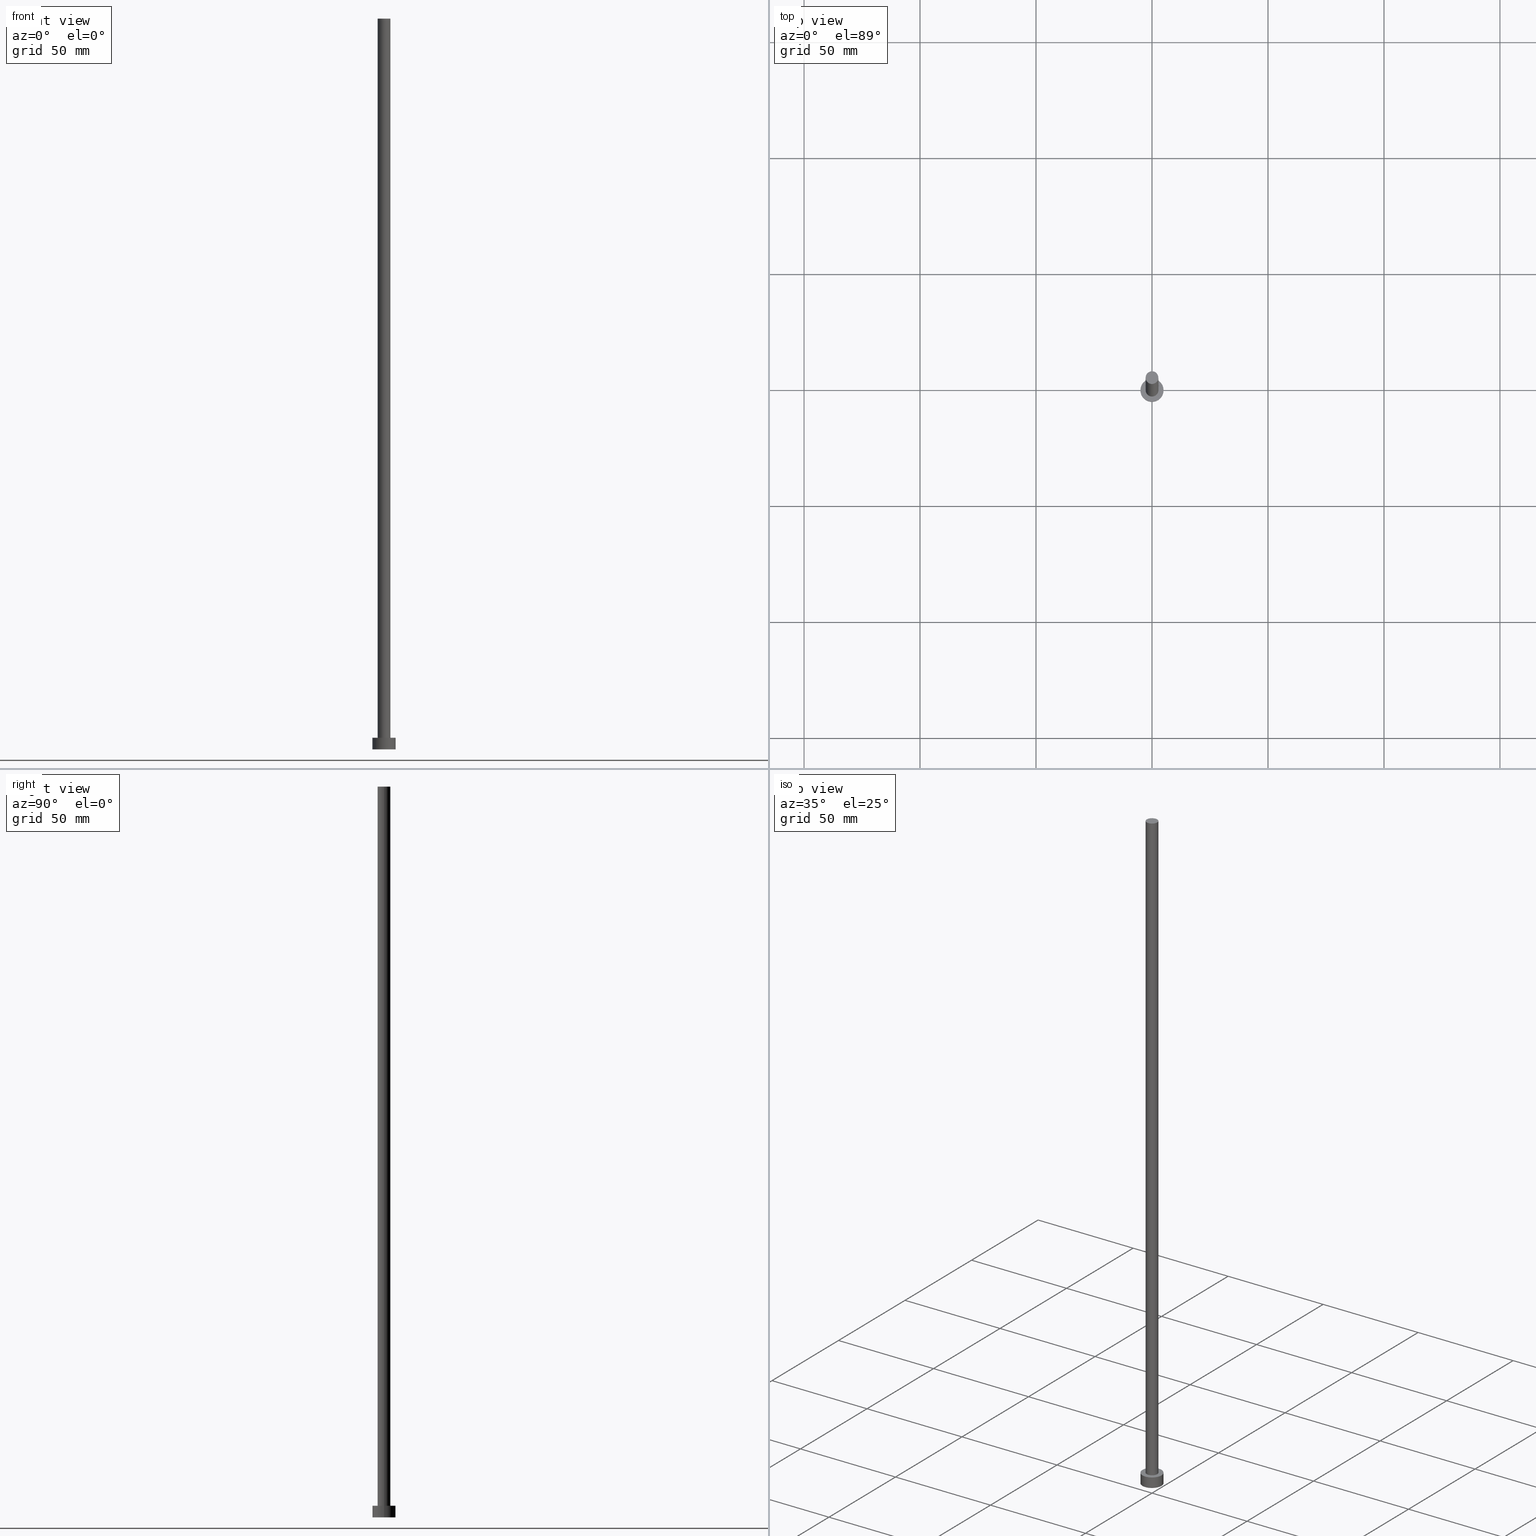
[diagram: canonical four-view strip — front | top / right | iso, engineering-drawing reading convention]
A machine part, canonical four-view strip (front | top / right | iso — engineering-drawing reading convention). The complete STEP part file that produces these views, byte-faithful:
ISO-10303-21;
HEADER;
FILE_DESCRIPTION (( 'STEP AP203' ),
    '1' );
FILE_NAME ('444e.STEP',
    '2023-02-13T15:47:10',
    ( '' ),
    ( '' ),
    'SwSTEP 2.0',
    'SolidWorks 2019',
    '' );
FILE_SCHEMA (( 'CONFIG_CONTROL_DESIGN' ));
ENDSEC;

DATA;
#1 = CIRCLE ( 'NONE', #114, 2.750000000000000000 ) ;
#2 =( NAMED_UNIT ( * ) SI_UNIT ( $, .STERADIAN. ) SOLID_ANGLE_UNIT ( ) );
#3 = ORIENTED_EDGE ( 'NONE', *, *, #108, .T. ) ;
#4 = CC_DESIGN_PERSON_AND_ORGANIZATION_ASSIGNMENT ( #29, #211, ( #58 ) ) ;
#5 = CYLINDRICAL_SURFACE ( 'NONE', #109, 5.000000000000000000 ) ;
#6 = AXIS2_PLACEMENT_3D ( 'NONE', #31, #113, #89 ) ;
#7 = DATE_TIME_ROLE ( 'classification_date' ) ;
#8 = DIRECTION ( 'NONE',  ( 0.000000000000000000, 0.000000000000000000, 1.000000000000000000 ) ) ;
#9 = DIRECTION ( 'NONE',  ( 0.000000000000000000, 0.000000000000000000, 1.000000000000000000 ) ) ;
#10 = ADVANCED_FACE ( 'NONE', ( #127 ), #80, .T. ) ;
#11 = ORIENTED_EDGE ( 'NONE', *, *, #67, .F. ) ;
#12 = VECTOR ( 'NONE', #150, 1000.000000000000000 ) ;
#13 = CC_DESIGN_PERSON_AND_ORGANIZATION_ASSIGNMENT ( #106, #190, ( #58 ) ) ;
#14 = FACE_OUTER_BOUND ( 'NONE', #134, .T. ) ;
#15 =( GEOMETRIC_REPRESENTATION_CONTEXT ( 3 ) GLOBAL_UNCERTAINTY_ASSIGNED_CONTEXT ( ( #34 ) ) GLOBAL_UNIT_ASSIGNED_CONTEXT ( ( #216, #176, #2 ) ) REPRESENTATION_CONTEXT ( 'NONE', 'WORKASPACE' ) );
#16 = EDGE_LOOP ( 'NONE', ( #131, #112, #3, #84 ) ) ;
#17 = CARTESIAN_POINT ( 'NONE',  ( 0.000000000000000000, 0.000000000000000000, 0.000000000000000000 ) ) ;
#18 = EDGE_CURVE ( 'NONE', #147, #169, #49, .T. ) ;
#19 = APPLICATION_PROTOCOL_DEFINITION ( 'international standard', 'config_control_design', 1994, #198 ) ;
#20 = DIRECTION ( 'NONE',  ( 1.000000000000000000, 0.000000000000000000, 0.000000000000000000 ) ) ;
#21 = SHAPE_DEFINITION_REPRESENTATION ( #165, #76 ) ;
#22 = FACE_OUTER_BOUND ( 'NONE', #54, .T. ) ;
#23 = PLANE ( 'NONE',  #251 ) ;
#24 = LOCAL_TIME ( 16, 47, 10.00000000000000000, #164 ) ;
#25 = DIRECTION ( 'NONE',  ( -0.000000000000000000, -0.000000000000000000, -1.000000000000000000 ) ) ;
#26 = CARTESIAN_POINT ( 'NONE',  ( 0.000000000000000000, 0.000000000000000000, 5.000000000000000000 ) ) ;
#27 = VECTOR ( 'NONE', #129, 1000.000000000000000 ) ;
#28 = ORIENTED_EDGE ( 'NONE', *, *, #231, .T. ) ;
#29 = PERSON_AND_ORGANIZATION ( #177, #148 ) ;
#30 = EDGE_LOOP ( 'NONE', ( #240, #253, #238, #119 ) ) ;
#31 = CARTESIAN_POINT ( 'NONE',  ( 0.000000000000000000, 0.000000000000000000, 5.000000000000000000 ) ) ;
#32 = EDGE_CURVE ( 'NONE', #57, #235, #246, .T. ) ;
#33 = DATE_TIME_ROLE ( 'creation_date' ) ;
#34 = UNCERTAINTY_MEASURE_WITH_UNIT (LENGTH_MEASURE( 1.000000000000000082E-05 ), #216, 'distance_accuracy_value', 'NONE');
#35 = DIRECTION ( 'NONE',  ( 0.000000000000000000, 0.000000000000000000, 1.000000000000000000 ) ) ;
#36 = CALENDAR_DATE ( 2023, 13, 2 ) ;
#37 = EDGE_CURVE ( 'NONE', #235, #201, #55, .T. ) ;
#38 = CARTESIAN_POINT ( 'NONE',  ( 0.000000000000000000, 0.000000000000000000, 5.000000000000000000 ) ) ;
#39 = CARTESIAN_POINT ( 'NONE',  ( 0.000000000000000000, 0.000000000000000000, 0.000000000000000000 ) ) ;
#40 = CC_DESIGN_APPROVAL ( #247, ( #52 ) ) ;
#41 = DIRECTION ( 'NONE',  ( -1.000000000000000000, 0.000000000000000000, 0.000000000000000000 ) ) ;
#42 = DIRECTION ( 'NONE',  ( 0.000000000000000000, 0.000000000000000000, 1.000000000000000000 ) ) ;
#43 = ORIENTED_EDGE ( 'NONE', *, *, #108, .F. ) ;
#44 = DIRECTION ( 'NONE',  ( 0.000000000000000000, 0.000000000000000000, 1.000000000000000000 ) ) ;
#45 = DATE_AND_TIME ( #172, #196 ) ;
#46 = CC_DESIGN_DATE_AND_TIME_ASSIGNMENT ( #161, #33, ( #52 ) ) ;
#47 = LOCAL_TIME ( 16, 47, 10.00000000000000000, #245 ) ;
#48 = LINE ( 'NONE', #215, #27 ) ;
#49 = CIRCLE ( 'NONE', #146, 5.000000000000000000 ) ;
#50 = AXIS2_PLACEMENT_3D ( 'NONE', #64, #208, #192 ) ;
#51 = APPROVAL_ROLE ( '' ) ;
#52 = PRODUCT_DEFINITION ( 'NEZN�M�', '', #58, #219 ) ;
#53 = ORIENTED_EDGE ( 'NONE', *, *, #151, .T. ) ;
#54 = EDGE_LOOP ( 'NONE', ( #53, #63 ) ) ;
#55 = CIRCLE ( 'NONE', #88, 2.750000000000000000 ) ;
#56 = EDGE_CURVE ( 'NONE', #170, #147, #159, .T. ) ;
#57 = VERTEX_POINT ( 'NONE', #60 ) ;
#58 = PRODUCT_DEFINITION_FORMATION_WITH_SPECIFIED_SOURCE ( 'LIBOVOLN�', '', #124, .NOT_KNOWN. ) ;
#59 = CARTESIAN_POINT ( 'NONE',  ( 0.000000000000000000, 0.000000000000000000, 315.0000000000000000 ) ) ;
#60 = CARTESIAN_POINT ( 'NONE',  ( -2.750000000000000000, 0.000000000000000000, 315.0000000000000000 ) ) ;
#61 = AXIS2_PLACEMENT_3D ( 'NONE', #26, #86, #236 ) ;
#62 = DIRECTION ( 'NONE',  ( -1.000000000000000000, 0.000000000000000000, 0.000000000000000000 ) ) ;
#63 = ORIENTED_EDGE ( 'NONE', *, *, #104, .T. ) ;
#64 = CARTESIAN_POINT ( 'NONE',  ( 0.000000000000000000, 0.000000000000000000, 0.000000000000000000 ) ) ;
#65 = DATE_AND_TIME ( #250, #24 ) ;
#66 = CARTESIAN_POINT ( 'NONE',  ( -5.000000000000000000, 0.000000000000000000, 0.000000000000000000 ) ) ;
#67 = EDGE_CURVE ( 'NONE', #169, #147, #68, .T. ) ;
#68 = CIRCLE ( 'NONE', #101, 5.000000000000000000 ) ;
#69 = LINE ( 'NONE', #128, #12 ) ;
#70 = ORIENTED_EDGE ( 'NONE', *, *, #203, .F. ) ;
#71 = CC_DESIGN_APPROVAL ( #194, ( #183 ) ) ;
#72 = EDGE_LOOP ( 'NONE', ( #70, #149, #87, #202 ) ) ;
#73 = APPROVAL_PERSON_ORGANIZATION ( #135, #194, #136 ) ;
#74 = ADVANCED_FACE ( 'NONE', ( #22 ), #23, .T. ) ;
#75 = CYLINDRICAL_SURFACE ( 'NONE', #221, 5.000000000000000000 ) ;
#76 = ADVANCED_BREP_SHAPE_REPRESENTATION ( '444e', ( #105, #144 ), #15 ) ;
#77 = DIRECTION ( 'NONE',  ( 0.000000000000000000, 0.000000000000000000, 1.000000000000000000 ) ) ;
#78 = AXIS2_PLACEMENT_3D ( 'NONE', #171, #44, #213 ) ;
#79 = APPROVAL_DATE_TIME ( #249, #247 ) ;
#80 = CYLINDRICAL_SURFACE ( 'NONE', #158, 2.750000000000000000 ) ;
#81 = CARTESIAN_POINT ( 'NONE',  ( -2.750000000000000000, 0.000000000000000000, 315.0000000000000000 ) ) ;
#82 = CC_DESIGN_PERSON_AND_ORGANIZATION_ASSIGNMENT ( #179, #115, ( #124 ) ) ;
#83 = LOCAL_TIME ( 16, 47, 10.00000000000000000, #139 ) ;
#84 = ORIENTED_EDGE ( 'NONE', *, *, #32, .F. ) ;
#85 = ADVANCED_FACE ( 'NONE', ( #224 ), #75, .T. ) ;
#86 = DIRECTION ( 'NONE',  ( 0.000000000000000000, 0.000000000000000000, 1.000000000000000000 ) ) ;
#87 = ORIENTED_EDGE ( 'NONE', *, *, #32, .T. ) ;
#88 = AXIS2_PLACEMENT_3D ( 'NONE', #220, #8, #162 ) ;
#89 = DIRECTION ( 'NONE',  ( 1.000000000000000000, 0.000000000000000000, 0.000000000000000000 ) ) ;
#90 = APPLICATION_PROTOCOL_DEFINITION ( 'international standard', 'config_control_design', 1994, #178 ) ;
#91 = CC_DESIGN_SECURITY_CLASSIFICATION ( #183, ( #58 ) ) ;
#92 = APPROVAL_STATUS ( 'not_yet_approved' ) ;
#93 = PRODUCT_RELATED_PRODUCT_CATEGORY ( 'detail', '', ( #124 ) ) ;
#94 = PLANE ( 'NONE',  #228 ) ;
#95 = CALENDAR_DATE ( 2023, 13, 2 ) ;
#96 = DIRECTION ( 'NONE',  ( 1.000000000000000000, 0.000000000000000000, 0.000000000000000000 ) ) ;
#97 = ADVANCED_FACE ( 'NONE', ( #122 ), #5, .T. ) ;
#98 = DIRECTION ( 'NONE',  ( 1.000000000000000000, 0.000000000000000000, 0.000000000000000000 ) ) ;
#99 = AXIS2_PLACEMENT_3D ( 'NONE', #222, #25, #100 ) ;
#100 = DIRECTION ( 'NONE',  ( -1.000000000000000000, 0.000000000000000000, 0.000000000000000000 ) ) ;
#101 = AXIS2_PLACEMENT_3D ( 'NONE', #248, #206, #204 ) ;
#102 = CARTESIAN_POINT ( 'NONE',  ( 0.000000000000000000, 0.000000000000000000, 315.0000000000000000 ) ) ;
#103 = SECURITY_CLASSIFICATION_LEVEL ( 'unclassified' ) ;
#104 = EDGE_CURVE ( 'NONE', #167, #57, #1, .T. ) ;
#105 = MANIFOLD_SOLID_BREP ( 'P�idat vysunut�m3', #197 ) ;
#106 = PERSON_AND_ORGANIZATION ( #177, #148 ) ;
#107 = CIRCLE ( 'NONE', #61, 5.000000000000000000 ) ;
#108 = EDGE_CURVE ( 'NONE', #201, #235, #175, .T. ) ;
#109 = AXIS2_PLACEMENT_3D ( 'NONE', #38, #205, #62 ) ;
#110 = CARTESIAN_POINT ( 'NONE',  ( 2.750000000000000000, 3.367778697655221012E-16, 315.0000000000000000 ) ) ;
#111 = CIRCLE ( 'NONE', #6, 5.000000000000000000 ) ;
#112 = ORIENTED_EDGE ( 'NONE', *, *, #203, .T. ) ;
#113 = DIRECTION ( 'NONE',  ( 0.000000000000000000, 0.000000000000000000, 1.000000000000000000 ) ) ;
#114 = AXIS2_PLACEMENT_3D ( 'NONE', #123, #156, #98 ) ;
#115 = PERSON_AND_ORGANIZATION_ROLE ( 'design_owner' ) ;
#116 = PERSON_AND_ORGANIZATION ( #177, #148 ) ;
#117 = ADVANCED_FACE ( 'NONE', ( #187, #145 ), #94, .T. ) ;
#118 = ORIENTED_EDGE ( 'NONE', *, *, #37, .F. ) ;
#119 = ORIENTED_EDGE ( 'NONE', *, *, #18, .T. ) ;
#120 = EDGE_LOOP ( 'NONE', ( #209, #28 ) ) ;
#121 = DIRECTION ( 'NONE',  ( -0.000000000000000000, -0.000000000000000000, -1.000000000000000000 ) ) ;
#122 = FACE_OUTER_BOUND ( 'NONE', #155, .T. ) ;
#123 = CARTESIAN_POINT ( 'NONE',  ( 0.000000000000000000, 0.000000000000000000, 315.0000000000000000 ) ) ;
#124 = PRODUCT ( '444e', '444e', '', ( #218 ) ) ;
#125 = DIRECTION ( 'NONE',  ( 0.000000000000000000, 0.000000000000000000, 1.000000000000000000 ) ) ;
#126 = CARTESIAN_POINT ( 'NONE',  ( 0.000000000000000000, 0.000000000000000000, 5.000000000000000000 ) ) ;
#127 = FACE_OUTER_BOUND ( 'NONE', #72, .T. ) ;
#128 = CARTESIAN_POINT ( 'NONE',  ( 5.000000000000000000, 6.123233995736766282E-16, 5.000000000000000000 ) ) ;
#129 = DIRECTION ( 'NONE',  ( -0.000000000000000000, -0.000000000000000000, -1.000000000000000000 ) ) ;
#130 = PLANE ( 'NONE',  #50 ) ;
#131 = ORIENTED_EDGE ( 'NONE', *, *, #104, .F. ) ;
#132 = ADVANCED_FACE ( 'NONE', ( #184 ), #244, .T. ) ;
#133 = APPROVAL_PERSON_ORGANIZATION ( #153, #247, #51 ) ;
#134 = EDGE_LOOP ( 'NONE', ( #241, #11 ) ) ;
#135 = PERSON_AND_ORGANIZATION ( #177, #148 ) ;
#136 = APPROVAL_ROLE ( '' ) ;
#137 = AXIS2_PLACEMENT_3D ( 'NONE', #242, #42, #20 ) ;
#138 = CARTESIAN_POINT ( 'NONE',  ( 0.000000000000000000, 0.000000000000000000, 5.000000000000000000 ) ) ;
#139 = COORDINATED_UNIVERSAL_TIME_OFFSET ( 1, 0, .AHEAD. ) ;
#140 = DIRECTION ( 'NONE',  ( -0.000000000000000000, -0.000000000000000000, -1.000000000000000000 ) ) ;
#141 = DIRECTION ( 'NONE',  ( 1.000000000000000000, 0.000000000000000000, -0.000000000000000000 ) ) ;
#142 = PERSON_AND_ORGANIZATION ( #177, #148 ) ;
#143 = DIRECTION ( 'NONE',  ( -0.000000000000000000, -0.000000000000000000, -1.000000000000000000 ) ) ;
#144 = AXIS2_PLACEMENT_3D ( 'NONE', #17, #35, #239 ) ;
#145 = FACE_OUTER_BOUND ( 'NONE', #120, .T. ) ;
#146 = AXIS2_PLACEMENT_3D ( 'NONE', #39, #125, #96 ) ;
#147 = VERTEX_POINT ( 'NONE', #66 ) ;
#148 = ORGANIZATION ( 'NEUR�EN�', 'NEUR�EN�', '' ) ;
#149 = ORIENTED_EDGE ( 'NONE', *, *, #151, .F. ) ;
#150 = DIRECTION ( 'NONE',  ( -0.000000000000000000, -0.000000000000000000, -1.000000000000000000 ) ) ;
#151 = EDGE_CURVE ( 'NONE', #57, #167, #225, .T. ) ;
#152 = EDGE_CURVE ( 'NONE', #173, #169, #69, .T. ) ;
#153 = PERSON_AND_ORGANIZATION ( #177, #148 ) ;
#154 = APPROVAL_ROLE ( '' ) ;
#155 = EDGE_LOOP ( 'NONE', ( #227, #212, #229, #193 ) ) ;
#156 = DIRECTION ( 'NONE',  ( 0.000000000000000000, 0.000000000000000000, 1.000000000000000000 ) ) ;
#157 = DIRECTION ( 'NONE',  ( 1.000000000000000000, 0.000000000000000000, -0.000000000000000000 ) ) ;
#158 = AXIS2_PLACEMENT_3D ( 'NONE', #102, #143, #188 ) ;
#159 = LINE ( 'NONE', #226, #181 ) ;
#160 = CALENDAR_DATE ( 2023, 13, 2 ) ;
#161 = DATE_AND_TIME ( #36, #83 ) ;
#162 = DIRECTION ( 'NONE',  ( 1.000000000000000000, 0.000000000000000000, 0.000000000000000000 ) ) ;
#163 = PERSON_AND_ORGANIZATION_ROLE ( 'creator' ) ;
#164 = COORDINATED_UNIVERSAL_TIME_OFFSET ( 1, 0, .AHEAD. ) ;
#165 = PRODUCT_DEFINITION_SHAPE ( 'NONE', 'NONE',  #52 ) ;
#166 = LOCAL_TIME ( 16, 47, 10.00000000000000000, #252 ) ;
#167 = VERTEX_POINT ( 'NONE', #110 ) ;
#168 = PERSON_AND_ORGANIZATION ( #177, #148 ) ;
#169 = VERTEX_POINT ( 'NONE', #255 ) ;
#170 = VERTEX_POINT ( 'NONE', #233 ) ;
#171 = CARTESIAN_POINT ( 'NONE',  ( 0.000000000000000000, 0.000000000000000000, 315.0000000000000000 ) ) ;
#172 = CALENDAR_DATE ( 2023, 13, 2 ) ;
#173 = VERTEX_POINT ( 'NONE', #195 ) ;
#174 = CARTESIAN_POINT ( 'NONE',  ( -2.750000000000000000, 0.000000000000000000, 5.000000000000000000 ) ) ;
#175 = CIRCLE ( 'NONE', #137, 2.750000000000000000 ) ;
#176 =( NAMED_UNIT ( * ) PLANE_ANGLE_UNIT ( ) SI_UNIT ( $, .RADIAN. ) );
#177 = PERSON ( 'NEUR�EN�', 'NEUR�EN�', 'NEUR�EN�', ('NEUR�EN�'), ('NEUR�EN�'), ('NEUR�EN�') ) ;
#178 = APPLICATION_CONTEXT ( 'configuration controlled 3d designs of mechanical parts and assemblies' ) ;
#179 = PERSON_AND_ORGANIZATION ( #177, #148 ) ;
#180 = ADVANCED_FACE ( 'NONE', ( #14 ), #130, .F. ) ;
#181 = VECTOR ( 'NONE', #207, 1000.000000000000000 ) ;
#182 = APPROVAL_DATE_TIME ( #223, #194 ) ;
#183 = SECURITY_CLASSIFICATION ( '', '', #103 ) ;
#184 = FACE_OUTER_BOUND ( 'NONE', #16, .T. ) ;
#185 = APPROVAL_STATUS ( 'not_yet_approved' ) ;
#186 = APPROVAL ( #92, 'NEUR�EN�' ) ;
#187 = FACE_BOUND ( 'NONE', #232, .T. ) ;
#188 = DIRECTION ( 'NONE',  ( -1.000000000000000000, 0.000000000000000000, 0.000000000000000000 ) ) ;
#189 = PERSON_AND_ORGANIZATION_ROLE ( 'classification_officer' ) ;
#190 = PERSON_AND_ORGANIZATION_ROLE ( 'creator' ) ;
#191 = CC_DESIGN_APPROVAL ( #186, ( #58 ) ) ;
#192 = DIRECTION ( 'NONE',  ( 1.000000000000000000, 0.000000000000000000, -0.000000000000000000 ) ) ;
#193 = ORIENTED_EDGE ( 'NONE', *, *, #56, .F. ) ;
#194 = APPROVAL ( #185, 'NEUR�EN�' ) ;
#195 = CARTESIAN_POINT ( 'NONE',  ( 5.000000000000000000, 6.123233995736766282E-16, 5.000000000000000000 ) ) ;
#196 = LOCAL_TIME ( 16, 47, 10.00000000000000000, #234 ) ;
#197 = CLOSED_SHELL ( 'NONE', ( #132, #97, #85, #117, #180, #10, #74 ) ) ;
#198 = APPLICATION_CONTEXT ( 'configuration controlled 3d designs of mechanical parts and assemblies' ) ;
#199 = EDGE_CURVE ( 'NONE', #170, #173, #107, .T. ) ;
#200 = VECTOR ( 'NONE', #121, 1000.000000000000000 ) ;
#201 = VERTEX_POINT ( 'NONE', #254 ) ;
#202 = ORIENTED_EDGE ( 'NONE', *, *, #37, .T. ) ;
#203 = EDGE_CURVE ( 'NONE', #167, #201, #48, .T. ) ;
#204 = DIRECTION ( 'NONE',  ( 1.000000000000000000, 0.000000000000000000, 0.000000000000000000 ) ) ;
#205 = DIRECTION ( 'NONE',  ( -0.000000000000000000, -0.000000000000000000, -1.000000000000000000 ) ) ;
#206 = DIRECTION ( 'NONE',  ( 0.000000000000000000, 0.000000000000000000, 1.000000000000000000 ) ) ;
#207 = DIRECTION ( 'NONE',  ( -0.000000000000000000, -0.000000000000000000, -1.000000000000000000 ) ) ;
#208 = DIRECTION ( 'NONE',  ( 0.000000000000000000, 0.000000000000000000, 1.000000000000000000 ) ) ;
#209 = ORIENTED_EDGE ( 'NONE', *, *, #199, .T. ) ;
#210 = APPROVAL_PERSON_ORGANIZATION ( #116, #186, #154 ) ;
#211 = PERSON_AND_ORGANIZATION_ROLE ( 'design_supplier' ) ;
#212 = ORIENTED_EDGE ( 'NONE', *, *, #152, .T. ) ;
#213 = DIRECTION ( 'NONE',  ( 1.000000000000000000, 0.000000000000000000, 0.000000000000000000 ) ) ;
#214 = APPROVAL_DATE_TIME ( #45, #186 ) ;
#215 = CARTESIAN_POINT ( 'NONE',  ( 2.750000000000000000, 3.367778697655221012E-16, 315.0000000000000000 ) ) ;
#216 =( LENGTH_UNIT ( ) NAMED_UNIT ( * ) SI_UNIT ( .MILLI., .METRE. ) );
#217 = CC_DESIGN_PERSON_AND_ORGANIZATION_ASSIGNMENT ( #168, #189, ( #183 ) ) ;
#218 = MECHANICAL_CONTEXT ( 'NONE', #198, 'mechanical' ) ;
#219 = DESIGN_CONTEXT ( 'detailed design', #178, 'design' ) ;
#220 = CARTESIAN_POINT ( 'NONE',  ( 0.000000000000000000, 0.000000000000000000, 5.000000000000000000 ) ) ;
#221 = AXIS2_PLACEMENT_3D ( 'NONE', #126, #140, #41 ) ;
#222 = CARTESIAN_POINT ( 'NONE',  ( 0.000000000000000000, 0.000000000000000000, 315.0000000000000000 ) ) ;
#223 = DATE_AND_TIME ( #95, #47 ) ;
#224 = FACE_OUTER_BOUND ( 'NONE', #30, .T. ) ;
#225 = CIRCLE ( 'NONE', #78, 2.750000000000000000 ) ;
#226 = CARTESIAN_POINT ( 'NONE',  ( -5.000000000000000000, 0.000000000000000000, 5.000000000000000000 ) ) ;
#227 = ORIENTED_EDGE ( 'NONE', *, *, #231, .F. ) ;
#228 = AXIS2_PLACEMENT_3D ( 'NONE', #138, #77, #157 ) ;
#229 = ORIENTED_EDGE ( 'NONE', *, *, #67, .T. ) ;
#230 = CC_DESIGN_PERSON_AND_ORGANIZATION_ASSIGNMENT ( #142, #163, ( #52 ) ) ;
#231 = EDGE_CURVE ( 'NONE', #173, #170, #111, .T. ) ;
#232 = EDGE_LOOP ( 'NONE', ( #118, #43 ) ) ;
#233 = CARTESIAN_POINT ( 'NONE',  ( -5.000000000000000000, 0.000000000000000000, 5.000000000000000000 ) ) ;
#234 = COORDINATED_UNIVERSAL_TIME_OFFSET ( 1, 0, .AHEAD. ) ;
#235 = VERTEX_POINT ( 'NONE', #174 ) ;
#236 = DIRECTION ( 'NONE',  ( 1.000000000000000000, 0.000000000000000000, 0.000000000000000000 ) ) ;
#237 = APPROVAL_STATUS ( 'not_yet_approved' ) ;
#238 = ORIENTED_EDGE ( 'NONE', *, *, #56, .T. ) ;
#239 = DIRECTION ( 'NONE',  ( 1.000000000000000000, 0.000000000000000000, 0.000000000000000000 ) ) ;
#240 = ORIENTED_EDGE ( 'NONE', *, *, #152, .F. ) ;
#241 = ORIENTED_EDGE ( 'NONE', *, *, #18, .F. ) ;
#242 = CARTESIAN_POINT ( 'NONE',  ( 0.000000000000000000, 0.000000000000000000, 5.000000000000000000 ) ) ;
#243 = CC_DESIGN_DATE_AND_TIME_ASSIGNMENT ( #65, #7, ( #183 ) ) ;
#244 = CYLINDRICAL_SURFACE ( 'NONE', #99, 2.750000000000000000 ) ;
#245 = COORDINATED_UNIVERSAL_TIME_OFFSET ( 1, 0, .AHEAD. ) ;
#246 = LINE ( 'NONE', #81, #200 ) ;
#247 = APPROVAL ( #237, 'NEUR�EN�' ) ;
#248 = CARTESIAN_POINT ( 'NONE',  ( 0.000000000000000000, 0.000000000000000000, 0.000000000000000000 ) ) ;
#249 = DATE_AND_TIME ( #160, #166 ) ;
#250 = CALENDAR_DATE ( 2023, 13, 2 ) ;
#251 = AXIS2_PLACEMENT_3D ( 'NONE', #59, #9, #141 ) ;
#252 = COORDINATED_UNIVERSAL_TIME_OFFSET ( 1, 0, .AHEAD. ) ;
#253 = ORIENTED_EDGE ( 'NONE', *, *, #199, .F. ) ;
#254 = CARTESIAN_POINT ( 'NONE',  ( 2.750000000000000000, 3.367778697655221012E-16, 5.000000000000000000 ) ) ;
#255 = CARTESIAN_POINT ( 'NONE',  ( 5.000000000000000000, 6.123233995736766282E-16, 0.000000000000000000 ) ) ;
ENDSEC;
END-ISO-10303-21;
